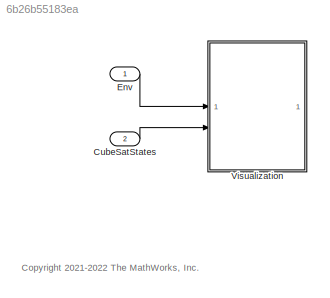
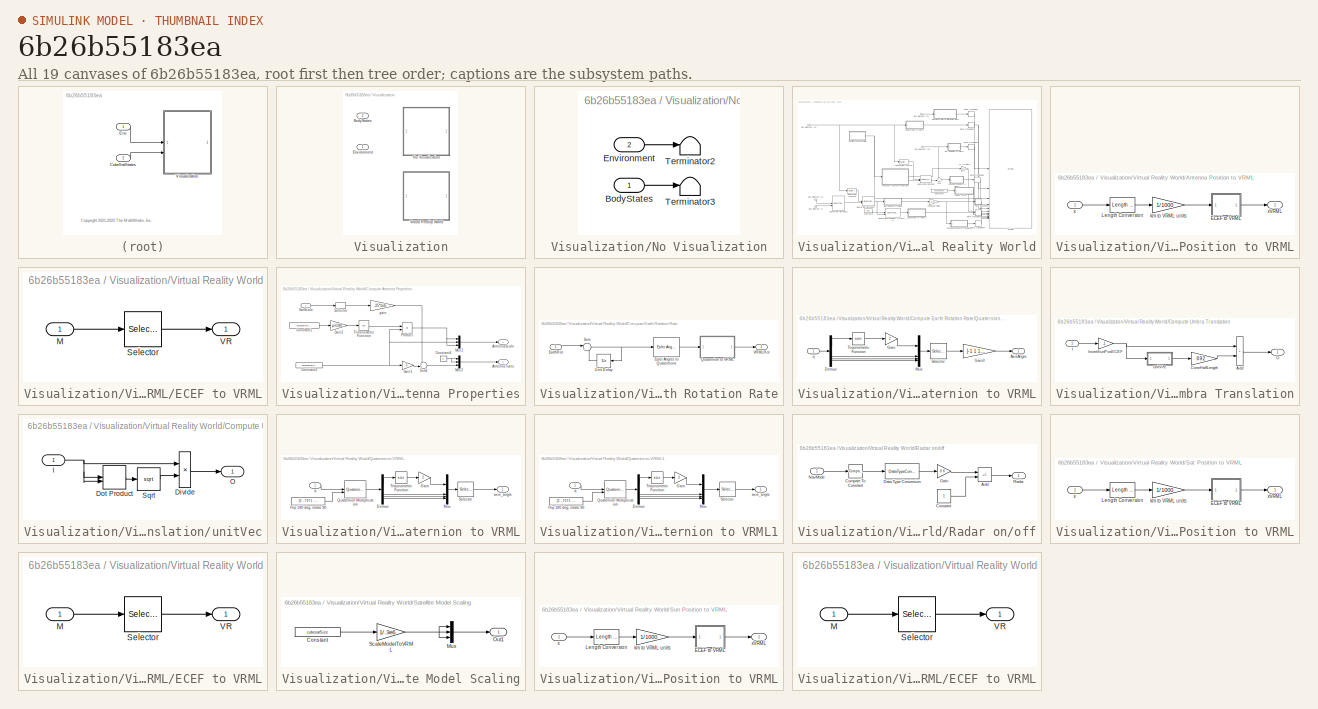
[diagram: thumbnail index - all 19 canvases of the model, root first then tree order]
MODEL slx_6b26b55183ea
KIND model
BLOCK [Inport] CubeSatStates
  OutDataTypeStr = Bus: StatesOutBus
  Port = 2
BLOCK [Inport] Env
  OutDataTypeStr = Bus: EnvBus
BLOCK [SubSystem] Visualization
  Variant = on
BLOCK [Inport] Visualization/BodyStates
  Port = 2
BLOCK [Inport] Visualization/Environment
BLOCK [SubSystem] Visualization/No Visualization
  VariantControl = visOff
BLOCK [Inport] Visualization/No Visualization/BodyStates
BLOCK [Inport] Visualization/No Visualization/Environment
  Port = 2
BLOCK [Terminator] Visualization/No Visualization/Terminator2
BLOCK [Terminator] Visualization/No Visualization/Terminator3
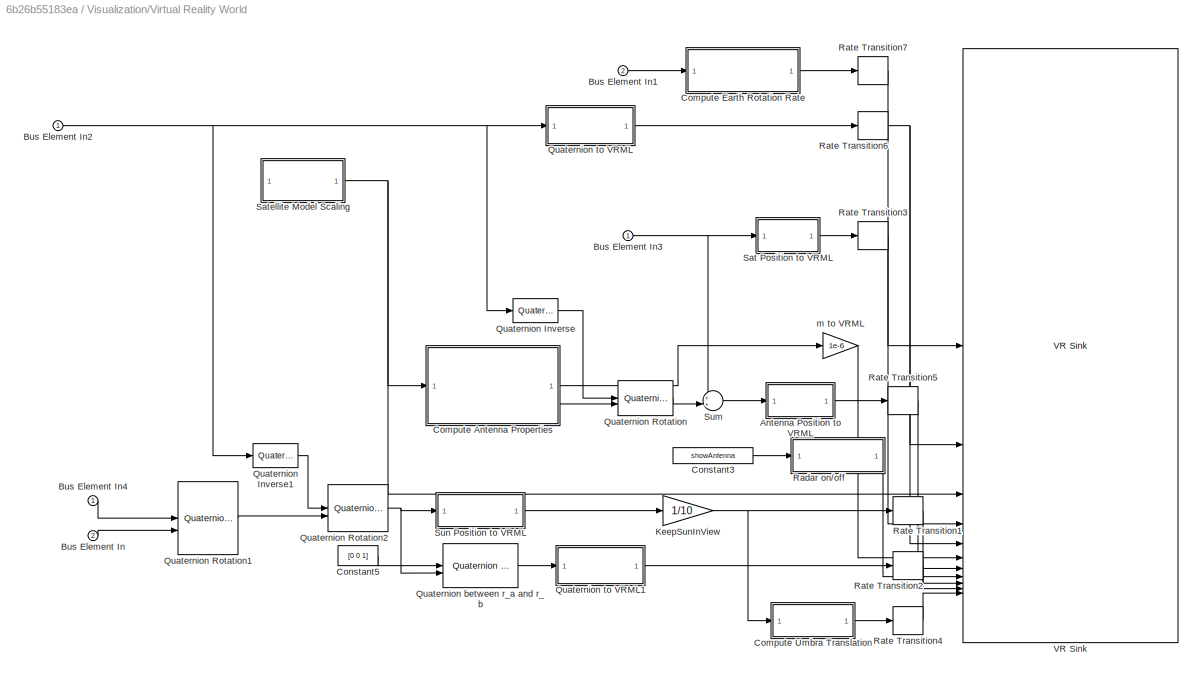
BLOCK [SubSystem] Visualization/Virtual Reality World
  VariantControl = visSL3D
BLOCK [SubSystem] Visualization/Virtual Reality World/Antenna Position to VRML
BLOCK [SubSystem] Visualization/Virtual Reality World/Antenna Position to VRML/ECEF to VRML
BLOCK [Inport] Visualization/Virtual Reality World/Antenna Position to VRML/ECEF to VRML/M
  PortDimensions = 3
BLOCK [Selector] Visualization/Virtual Reality World/Antenna Position to VRML/ECEF to VRML/Selector
  IndexOptions = Index vector (dialog)
  Indices = [2 3 1]
  InputPortWidth = 3
  OutputSizes = 1
BLOCK [Outport] Visualization/Virtual Reality World/Antenna Position to VRML/ECEF to VRML/VR
  PortDimensions = 3
  VectorParamsAs1DForOutWhenUnconnected = off
BLOCK [Reference] Visualization/Virtual Reality World/Antenna Position to VRML/Length Conversion  REF=aerolibconvert2/Length Conversion
  SourceBlock = aerolibconvert2/Length Conversion
  SourceType = Length Conversion
BLOCK [Gain] Visualization/Virtual Reality World/Antenna Position to VRML/km to VRML units
  Gain = 1/1000
BLOCK [Inport] Visualization/Virtual Reality World/Antenna Position to VRML/x
BLOCK [Outport] Visualization/Virtual Reality World/Antenna Position to VRML/xVRML
  VectorParamsAs1DForOutWhenUnconnected = off
BLOCK [Inport] Visualization/Virtual Reality World/Bus Element In
  Port = 2
BLOCK [Inport] Visualization/Virtual Reality World/Bus Element In1
  Port = 2
BLOCK [Inport] Visualization/Virtual Reality World/Bus Element In2
BLOCK [Inport] Visualization/Virtual Reality World/Bus Element In3
BLOCK [Inport] Visualization/Virtual Reality World/Bus Element In4
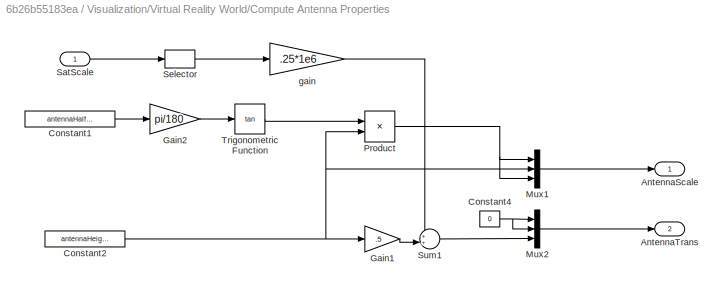
BLOCK [SubSystem] Visualization/Virtual Reality World/Compute Antenna Properties
BLOCK [Outport] Visualization/Virtual Reality World/Compute Antenna Properties/AntennaScale
  VectorParamsAs1DForOutWhenUnconnected = off
BLOCK [Outport] Visualization/Virtual Reality World/Compute Antenna Properties/AntennaTrans
  Port = 2
  VectorParamsAs1DForOutWhenUnconnected = off
BLOCK [Constant] Visualization/Virtual Reality World/Compute Antenna Properties/Constant1
  Value = antennaHalfAngle
BLOCK [Constant] Visualization/Virtual Reality World/Compute Antenna Properties/Constant2
  Value = antennaHeight
BLOCK [Constant] Visualization/Virtual Reality World/Compute Antenna Properties/Constant4
  Value = 0
BLOCK [Gain] Visualization/Virtual Reality World/Compute Antenna Properties/Gain1
  Gain = .5
BLOCK [Gain] Visualization/Virtual Reality World/Compute Antenna Properties/Gain2
  Gain = pi/180
BLOCK [Mux] Visualization/Virtual Reality World/Compute Antenna Properties/Mux1
  DisplayOption = bar
  Inputs = 3
BLOCK [Mux] Visualization/Virtual Reality World/Compute Antenna Properties/Mux2
  DisplayOption = bar
  Inputs = 3
BLOCK [Product] Visualization/Virtual Reality World/Compute Antenna Properties/Product
BLOCK [Inport] Visualization/Virtual Reality World/Compute Antenna Properties/SatScale
BLOCK [Selector] Visualization/Virtual Reality World/Compute Antenna Properties/Selector
  IndexOptions = Index vector (dialog)
  Indices = 1
  InputPortWidth = 3
  OutputSizes = 1
BLOCK [Sum] Visualization/Virtual Reality World/Compute Antenna Properties/Sum1
  Inputs = ++|
BLOCK [Trigonometry] Visualization/Virtual Reality World/Compute Antenna Properties/Trigonometric Function
  Operator = tan
BLOCK [Gain] Visualization/Virtual Reality World/Compute Antenna Properties/gain
  Gain = .25*1e6
BLOCK [SubSystem] Visualization/Virtual Reality World/Compute Earth Rotation Rate
BLOCK [Inport] Visualization/Virtual Reality World/Compute Earth Rotation Rate/EarthRot
BLOCK [Reference] Visualization/Virtual Reality World/Compute Earth Rotation Rate/Euler Angles to Quaternions  REF=aerolibobsolete/Euler Angles to Quaternions
  SourceBlock = aerolibobsolete/Euler Angles to Quaternions
  SourceType = Euler2Quaternion
BLOCK [SubSystem] Visualization/Virtual Reality World/Compute Earth Rotation Rate/Quaternion to VRML
BLOCK [Outport] Visualization/Virtual Reality World/Compute Earth Rotation Rate/Quaternion to VRML/AxisAngle
  VectorParamsAs1DForOutWhenUnconnected = off
BLOCK [Demux] Visualization/Virtual Reality World/Compute Earth Rotation Rate/Quaternion to VRML/Demux
BLOCK [Gain] Visualization/Virtual Reality World/Compute Earth Rotation Rate/Quaternion to VRML/Gain
  Gain = 2
BLOCK [Gain] Visualization/Virtual Reality World/Compute Earth Rotation Rate/Quaternion to VRML/Gain3
  Gain = [-1 1 1 1]
BLOCK [Mux] Visualization/Virtual Reality World/Compute Earth Rotation Rate/Quaternion to VRML/Mux
  DisplayOption = bar
BLOCK [Selector] Visualization/Virtual Reality World/Compute Earth Rotation Rate/Quaternion to VRML/Selector
  IndexOptions = Index vector (dialog)
  Indices = [2 4 3 1]
  InputPortWidth = 4
  OutputSizes = 1
BLOCK [Trigonometry] Visualization/Virtual Reality World/Compute Earth Rotation Rate/Quaternion to VRML/Trigonometric Function
  Operator = acos
BLOCK [Inport] Visualization/Virtual Reality World/Compute Earth Rotation Rate/Quaternion to VRML/q
BLOCK [Sum] Visualization/Virtual Reality World/Compute Earth Rotation Rate/Sum
  Inputs = |++
BLOCK [UnitDelay] Visualization/Virtual Reality World/Compute Earth Rotation Rate/Unit Delay
  HasFrameUpgradeWarning = on
  SampleTime = -1
BLOCK [Outport] Visualization/Virtual Reality World/Compute Earth Rotation Rate/VRMLRot
  VectorParamsAs1DForOutWhenUnconnected = off
BLOCK [SubSystem] Visualization/Virtual Reality World/Compute Umbra Translation
BLOCK [Sum] Visualization/Virtual Reality World/Compute Umbra Translation/Add
  IconShape = rectangular
BLOCK [Gain] Visualization/Virtual Reality World/Compute Umbra Translation/ConeHalfLength
  Gain = 692
BLOCK [Inport] Visualization/Virtual Reality World/Compute Umbra Translation/I
BLOCK [Gain] Visualization/Virtual Reality World/Compute Umbra Translation/InvertSunPosECEF
  Gain = -1
BLOCK [Outport] Visualization/Virtual Reality World/Compute Umbra Translation/O
  VectorParamsAs1DForOutWhenUnconnected = off
BLOCK [SubSystem] Visualization/Virtual Reality World/Compute Umbra Translation/unitVec
BLOCK [Product] Visualization/Virtual Reality World/Compute Umbra Translation/unitVec/Divide
  Inputs = */
BLOCK [DotProduct] Visualization/Virtual Reality World/Compute Umbra Translation/unitVec/Dot Product
  OutDataTypeStr = Inherit: Inherit via internal rule
BLOCK [Inport] Visualization/Virtual Reality World/Compute Umbra Translation/unitVec/I
BLOCK [Outport] Visualization/Virtual Reality World/Compute Umbra Translation/unitVec/O
  VectorParamsAs1DForOutWhenUnconnected = off
BLOCK [Sqrt] Visualization/Virtual Reality World/Compute Umbra Translation/unitVec/Sqrt
BLOCK [Constant] Visualization/Virtual Reality World/Constant3
  Value = showAntenna
BLOCK [Constant] Visualization/Virtual Reality World/Constant5
  Value = [0 0 1]
BLOCK [Gain] Visualization/Virtual Reality World/KeepSunInView
  Gain = 1/10
BLOCK [Reference] Visualization/Virtual Reality World/Quaternion Inverse  REF=aerolibutil/Quaternion
Inverse
  SourceBlock = aerolibutil/Quaternion\nInverse
  SourceType = Quaternion Inverse
BLOCK [Reference] Visualization/Virtual Reality World/Quaternion Inverse1  REF=aerolibutil/Quaternion
Inverse
  SourceBlock = aerolibutil/Quaternion\nInverse
  SourceType = Quaternion Inverse
BLOCK [Reference] Visualization/Virtual Reality World/Quaternion Rotation  REF=aerolibutil/Quaternion
Rotation
  SourceBlock = aerolibutil/Quaternion\nRotation
  SourceType = Quaternion Rotation
BLOCK [Reference] Visualization/Virtual Reality World/Quaternion Rotation1  REF=aerolibutil/Quaternion
Rotation
  SourceBlock = aerolibutil/Quaternion\nRotation
  SourceType = Quaternion Rotation
BLOCK [Reference] Visualization/Virtual Reality World/Quaternion Rotation2  REF=aerolibutil/Quaternion
Rotation
  SourceBlock = aerolibutil/Quaternion\nRotation
  SourceType = Quaternion Rotation
BLOCK [Reference] Visualization/Virtual Reality World/Quaternion between r_a and r_b  REF=aerolibattitudesys/Quaternion between
vectors
  SourceBlock = aerolibattitudesys/Quaternion between\nvectors
  SourceType = Calculate quaternion between vectors
BLOCK [SubSystem] Visualization/Virtual Reality World/Quaternion to VRML
BLOCK [Demux] Visualization/Virtual Reality World/Quaternion to VRML/Demux
BLOCK [Constant] Visualization/Virtual Reality World/Quaternion to VRML/Flip 180 deg, rotate 90
  Value = [0 -.7071 .7071 0]
BLOCK [Gain] Visualization/Virtual Reality World/Quaternion to VRML/Gain
  Gain = 2
BLOCK [Mux] Visualization/Virtual Reality World/Quaternion to VRML/Mux
  DisplayOption = bar
BLOCK [Reference] Visualization/Virtual Reality World/Quaternion to VRML/Quaternion Multiplication  REF=aerolibutil/Quaternion
Multiplication
  SourceBlock = aerolibutil/Quaternion\nMultiplication
  SourceType = Quaternion Multiplication
BLOCK [Selector] Visualization/Virtual Reality World/Quaternion to VRML/Selector
  IndexOptions = Index vector (dialog)
  Indices = [3 4 2 1]
  InputPortWidth = 4
  OutputSizes = 1
BLOCK [Trigonometry] Visualization/Virtual Reality World/Quaternion to VRML/Trigonometric Function
  Operator = acos
BLOCK [Outport] Visualization/Virtual Reality World/Quaternion to VRML/axis_angle
  VectorParamsAs1DForOutWhenUnconnected = off
BLOCK [Inport] Visualization/Virtual Reality World/Quaternion to VRML/q
BLOCK [SubSystem] Visualization/Virtual Reality World/Quaternion to VRML1
BLOCK [Demux] Visualization/Virtual Reality World/Quaternion to VRML1/Demux
BLOCK [Constant] Visualization/Virtual Reality World/Quaternion to VRML1/Flip 180 deg, rotate 90
  Value = [0 -.7071 .7071 0]
BLOCK [Gain] Visualization/Virtual Reality World/Quaternion to VRML1/Gain
  Gain = 2
BLOCK [Mux] Visualization/Virtual Reality World/Quaternion to VRML1/Mux
  DisplayOption = bar
BLOCK [Reference] Visualization/Virtual Reality World/Quaternion to VRML1/Quaternion Multiplication  REF=aerolibutil/Quaternion
Multiplication
  SourceBlock = aerolibutil/Quaternion\nMultiplication
  SourceType = Quaternion Multiplication
BLOCK [Selector] Visualization/Virtual Reality World/Quaternion to VRML1/Selector
  IndexOptions = Index vector (dialog)
  Indices = [3 4 2 1]
  InputPortWidth = 4
  OutputSizes = 1
BLOCK [Trigonometry] Visualization/Virtual Reality World/Quaternion to VRML1/Trigonometric Function
  Operator = acos
BLOCK [Outport] Visualization/Virtual Reality World/Quaternion to VRML1/axis_angle
  VectorParamsAs1DForOutWhenUnconnected = off
BLOCK [Inport] Visualization/Virtual Reality World/Quaternion to VRML1/q
BLOCK [SubSystem] Visualization/Virtual Reality World/Radar on//off
BLOCK [Sum] Visualization/Virtual Reality World/Radar on//off/Add
  IconShape = rectangular
  Inputs = -+
BLOCK [Reference] Visualization/Virtual Reality World/Radar on//off/Compare To Constant  REF=simulink/Logic and Bit
Operations/Compare
To Constant
  SourceBlock = simulink/Logic and Bit\nOperations/Compare\nTo Constant
  SourceType = Compare To Constant
BLOCK [Constant] Visualization/Virtual Reality World/Radar on//off/Constant
BLOCK [DataTypeConversion] Visualization/Virtual Reality World/Radar on//off/Data Type Conversion
  OutDataTypeStr = double
  RndMeth = Floor
  SaturateOnIntegerOverflow = off
BLOCK [Gain] Visualization/Virtual Reality World/Radar on//off/Gain
  Gain = 0.6
BLOCK [Inport] Visualization/Virtual Reality World/Radar on//off/NavMode
BLOCK [Outport] Visualization/Virtual Reality World/Radar on//off/Radar
  VectorParamsAs1DForOutWhenUnconnected = off
BLOCK [RateTransition] Visualization/Virtual Reality World/Rate Transition1
BLOCK [RateTransition] Visualization/Virtual Reality World/Rate Transition2
BLOCK [RateTransition] Visualization/Virtual Reality World/Rate Transition3
BLOCK [RateTransition] Visualization/Virtual Reality World/Rate Transition4
BLOCK [RateTransition] Visualization/Virtual Reality World/Rate Transition5
BLOCK [RateTransition] Visualization/Virtual Reality World/Rate Transition6
BLOCK [RateTransition] Visualization/Virtual Reality World/Rate Transition7
BLOCK [SubSystem] Visualization/Virtual Reality World/Sat Position to VRML
BLOCK [SubSystem] Visualization/Virtual Reality World/Sat Position to VRML/ECEF to VRML
BLOCK [Inport] Visualization/Virtual Reality World/Sat Position to VRML/ECEF to VRML/M
  PortDimensions = 3
BLOCK [Selector] Visualization/Virtual Reality World/Sat Position to VRML/ECEF to VRML/Selector
  IndexOptions = Index vector (dialog)
  Indices = [2 3 1]
  InputPortWidth = 3
  OutputSizes = 1
BLOCK [Outport] Visualization/Virtual Reality World/Sat Position to VRML/ECEF to VRML/VR
  PortDimensions = 3
  VectorParamsAs1DForOutWhenUnconnected = off
BLOCK [Reference] Visualization/Virtual Reality World/Sat Position to VRML/Length Conversion  REF=aerolibconvert2/Length Conversion
  SourceBlock = aerolibconvert2/Length Conversion
  SourceType = Length Conversion
BLOCK [Gain] Visualization/Virtual Reality World/Sat Position to VRML/km to VRML units
  Gain = 1/1000
BLOCK [Inport] Visualization/Virtual Reality World/Sat Position to VRML/x
BLOCK [Outport] Visualization/Virtual Reality World/Sat Position to VRML/xVRML
  VectorParamsAs1DForOutWhenUnconnected = off
BLOCK [SubSystem] Visualization/Virtual Reality World/Satellite Model Scaling
BLOCK [Constant] Visualization/Virtual Reality World/Satellite Model Scaling/Constant
  Value = cubesatSize
BLOCK [Mux] Visualization/Virtual Reality World/Satellite Model Scaling/Mux
  DisplayOption = bar
  Inputs = 3
BLOCK [Outport] Visualization/Virtual Reality World/Satellite Model Scaling/Out1
  VectorParamsAs1DForOutWhenUnconnected = off
BLOCK [Gain] Visualization/Virtual Reality World/Satellite Model Scaling/ScaleModelToVRML
  Gain = 1/.3e6
BLOCK [Sum] Visualization/Virtual Reality World/Sum
  Inputs = ++|
BLOCK [SubSystem] Visualization/Virtual Reality World/Sun Position to VRML
BLOCK [SubSystem] Visualization/Virtual Reality World/Sun Position to VRML/ECEF to VRML
BLOCK [Inport] Visualization/Virtual Reality World/Sun Position to VRML/ECEF to VRML/M
  PortDimensions = 3
BLOCK [Selector] Visualization/Virtual Reality World/Sun Position to VRML/ECEF to VRML/Selector
  IndexOptions = Index vector (dialog)
  Indices = [2 3 1]
  InputPortWidth = 3
  OutputSizes = 1
BLOCK [Outport] Visualization/Virtual Reality World/Sun Position to VRML/ECEF to VRML/VR
  PortDimensions = 3
  VectorParamsAs1DForOutWhenUnconnected = off
BLOCK [Reference] Visualization/Virtual Reality World/Sun Position to VRML/Length Conversion  REF=aerolibconvert2/Length Conversion
  SourceBlock = aerolibconvert2/Length Conversion
  SourceType = Length Conversion
BLOCK [Gain] Visualization/Virtual Reality World/Sun Position to VRML/km to VRML units
  Gain = 1/1000
BLOCK [Inport] Visualization/Virtual Reality World/Sun Position to VRML/x
BLOCK [Outport] Visualization/Virtual Reality World/Sun Position to VRML/xVRML
  VectorParamsAs1DForOutWhenUnconnected = off
BLOCK [Reference] Visualization/Virtual Reality World/VR Sink  REF=vrlib/VR Sink
  InstantiateOnLoad = on
  SourceBlock = vrlib/VR Sink
  SourceType = Virtual Reality Sink
BLOCK [Gain] Visualization/Virtual Reality World/m to VRML
  Gain = 1e-6
ANNOTATION (root): <copyright redacted>
LINE CubeSatStates:1 -> Visualization:2
LINE Env:1 -> Visualization:1
LINE Visualization/No Visualization/BodyStates:1 -> Visualization/No Visualization/Terminator3:1
LINE Visualization/No Visualization/Environment:1 -> Visualization/No Visualization/Terminator2:1
LINE Visualization/Virtual Reality World/Antenna Position to VRML/ECEF to VRML/M:1 -> Visualization/Virtual Reality World/Antenna Position to VRML/ECEF to VRML/Selector:1
LINE Visualization/Virtual Reality World/Antenna Position to VRML/ECEF to VRML/Selector:1 -> Visualization/Virtual Reality World/Antenna Position to VRML/ECEF to VRML/VR:1
LINE Visualization/Virtual Reality World/Antenna Position to VRML/ECEF to VRML:1 -> Visualization/Virtual Reality World/Antenna Position to VRML/xVRML:1
LINE Visualization/Virtual Reality World/Antenna Position to VRML/Length Conversion:1 -> Visualization/Virtual Reality World/Antenna Position to VRML/km to VRML units:1
LINE Visualization/Virtual Reality World/Antenna Position to VRML/km to VRML units:1 -> Visualization/Virtual Reality World/Antenna Position to VRML/ECEF to VRML:1
LINE Visualization/Virtual Reality World/Antenna Position to VRML/x:1 -> Visualization/Virtual Reality World/Antenna Position to VRML/Length Conversion:1
LINE Visualization/Virtual Reality World/Antenna Position to VRML:1 -> Visualization/Virtual Reality World/Rate Transition5:1
LINE Visualization/Virtual Reality World/Bus Element In1:1 -> Visualization/Virtual Reality World/Compute Earth Rotation Rate:1
NET Visualization/Virtual Reality World/Bus Element In2:1 -> Visualization/Virtual Reality World/Quaternion Inverse1:1, Visualization/Virtual Reality World/Quaternion Inverse:1, Visualization/Virtual Reality World/Quaternion to VRML:1
NET Visualization/Virtual Reality World/Bus Element In3:1 -> Visualization/Virtual Reality World/Sat Position to VRML:1, Visualization/Virtual Reality World/Sum:1
LINE Visualization/Virtual Reality World/Bus Element In4:1 -> Visualization/Virtual Reality World/Quaternion Rotation1:1
LINE Visualization/Virtual Reality World/Bus Element In:1 -> Visualization/Virtual Reality World/Quaternion Rotation1:2
LINE Visualization/Virtual Reality World/Compute Antenna Properties/Constant1:1 -> Visualization/Virtual Reality World/Compute Antenna Properties/Gain2:1
NET Visualization/Virtual Reality World/Compute Antenna Properties/Constant2:1 -> Visualization/Virtual Reality World/Compute Antenna Properties/Gain1:1, Visualization/Virtual Reality World/Compute Antenna Properties/Mux1:2, Visualization/Virtual Reality World/Compute Antenna Properties/Product:2
NET Visualization/Virtual Reality World/Compute Antenna Properties/Constant4:1 -> Visualization/Virtual Reality World/Compute Antenna Properties/Mux2:1, Visualization/Virtual Reality World/Compute Antenna Properties/Mux2:2
LINE Visualization/Virtual Reality World/Compute Antenna Properties/Gain1:1 -> Visualization/Virtual Reality World/Compute Antenna Properties/Sum1:2
LINE Visualization/Virtual Reality World/Compute Antenna Properties/Gain2:1 -> Visualization/Virtual Reality World/Compute Antenna Properties/Trigonometric Function:1
LINE Visualization/Virtual Reality World/Compute Antenna Properties/Mux1:1 -> Visualization/Virtual Reality World/Compute Antenna Properties/AntennaScale:1
LINE Visualization/Virtual Reality World/Compute Antenna Properties/Mux2:1 -> Visualization/Virtual Reality World/Compute Antenna Properties/AntennaTrans:1
NET Visualization/Virtual Reality World/Compute Antenna Properties/Product:1 -> Visualization/Virtual Reality World/Compute Antenna Properties/Mux1:1, Visualization/Virtual Reality World/Compute Antenna Properties/Mux1:3
LINE Visualization/Virtual Reality World/Compute Antenna Properties/SatScale:1 -> Visualization/Virtual Reality World/Compute Antenna Properties/Selector:1
LINE Visualization/Virtual Reality World/Compute Antenna Properties/Selector:1 -> Visualization/Virtual Reality World/Compute Antenna Properties/gain:1
LINE Visualization/Virtual Reality World/Compute Antenna Properties/Sum1:1 -> Visualization/Virtual Reality World/Compute Antenna Properties/Mux2:3
LINE Visualization/Virtual Reality World/Compute Antenna Properties/Trigonometric Function:1 -> Visualization/Virtual Reality World/Compute Antenna Properties/Product:1
LINE Visualization/Virtual Reality World/Compute Antenna Properties/gain:1 -> Visualization/Virtual Reality World/Compute Antenna Properties/Sum1:1
LINE Visualization/Virtual Reality World/Compute Antenna Properties:1 -> Visualization/Virtual Reality World/m to VRML:1
LINE Visualization/Virtual Reality World/Compute Antenna Properties:2 -> Visualization/Virtual Reality World/Quaternion Rotation:2
LINE Visualization/Virtual Reality World/Compute Earth Rotation Rate/EarthRot:1 -> Visualization/Virtual Reality World/Compute Earth Rotation Rate/Sum:1
LINE Visualization/Virtual Reality World/Compute Earth Rotation Rate/Euler Angles to Quaternions:1 -> Visualization/Virtual Reality World/Compute Earth Rotation Rate/Quaternion to VRML:1
LINE Visualization/Virtual Reality World/Compute Earth Rotation Rate/Quaternion to VRML/Demux:1 -> Visualization/Virtual Reality World/Compute Earth Rotation Rate/Quaternion to VRML/Trigonometric Function:1
LINE Visualization/Virtual Reality World/Compute Earth Rotation Rate/Quaternion to VRML/Demux:2 -> Visualization/Virtual Reality World/Compute Earth Rotation Rate/Quaternion to VRML/Mux:2
LINE Visualization/Virtual Reality World/Compute Earth Rotation Rate/Quaternion to VRML/Demux:3 -> Visualization/Virtual Reality World/Compute Earth Rotation Rate/Quaternion to VRML/Mux:3
LINE Visualization/Virtual Reality World/Compute Earth Rotation Rate/Quaternion to VRML/Demux:4 -> Visualization/Virtual Reality World/Compute Earth Rotation Rate/Quaternion to VRML/Mux:4
LINE Visualization/Virtual Reality World/Compute Earth Rotation Rate/Quaternion to VRML/Gain3:1 -> Visualization/Virtual Reality World/Compute Earth Rotation Rate/Quaternion to VRML/AxisAngle:1
LINE Visualization/Virtual Reality World/Compute Earth Rotation Rate/Quaternion to VRML/Gain:1 -> Visualization/Virtual Reality World/Compute Earth Rotation Rate/Quaternion to VRML/Mux:1
LINE Visualization/Virtual Reality World/Compute Earth Rotation Rate/Quaternion to VRML/Mux:1 -> Visualization/Virtual Reality World/Compute Earth Rotation Rate/Quaternion to VRML/Selector:1
LINE Visualization/Virtual Reality World/Compute Earth Rotation Rate/Quaternion to VRML/Selector:1 -> Visualization/Virtual Reality World/Compute Earth Rotation Rate/Quaternion to VRML/Gain3:1
LINE Visualization/Virtual Reality World/Compute Earth Rotation Rate/Quaternion to VRML/Trigonometric Function:1 -> Visualization/Virtual Reality World/Compute Earth Rotation Rate/Quaternion to VRML/Gain:1
LINE Visualization/Virtual Reality World/Compute Earth Rotation Rate/Quaternion to VRML/q:1 -> Visualization/Virtual Reality World/Compute Earth Rotation Rate/Quaternion to VRML/Demux:1
LINE Visualization/Virtual Reality World/Compute Earth Rotation Rate/Quaternion to VRML:1 -> Visualization/Virtual Reality World/Compute Earth Rotation Rate/VRMLRot:1
NET Visualization/Virtual Reality World/Compute Earth Rotation Rate/Sum:1 -> Visualization/Virtual Reality World/Compute Earth Rotation Rate/Euler Angles to Quaternions:1, Visualization/Virtual Reality World/Compute Earth Rotation Rate/Unit Delay:1
LINE Visualization/Virtual Reality World/Compute Earth Rotation Rate/Unit Delay:1 -> Visualization/Virtual Reality World/Compute Earth Rotation Rate/Sum:2
LINE Visualization/Virtual Reality World/Compute Earth Rotation Rate:1 -> Visualization/Virtual Reality World/Rate Transition7:1
LINE Visualization/Virtual Reality World/Compute Umbra Translation/Add:1 -> Visualization/Virtual Reality World/Compute Umbra Translation/O:1
LINE Visualization/Virtual Reality World/Compute Umbra Translation/ConeHalfLength:1 -> Visualization/Virtual Reality World/Compute Umbra Translation/Add:2
LINE Visualization/Virtual Reality World/Compute Umbra Translation/I:1 -> Visualization/Virtual Reality World/Compute Umbra Translation/InvertSunPosECEF:1
NET Visualization/Virtual Reality World/Compute Umbra Translation/InvertSunPosECEF:1 -> Visualization/Virtual Reality World/Compute Umbra Translation/Add:1, Visualization/Virtual Reality World/Compute Umbra Translation/unitVec:1
LINE Visualization/Virtual Reality World/Compute Umbra Translation/unitVec/Divide:1 -> Visualization/Virtual Reality World/Compute Umbra Translation/unitVec/O:1
LINE Visualization/Virtual Reality World/Compute Umbra Translation/unitVec/Dot Product:1 -> Visualization/Virtual Reality World/Compute Umbra Translation/unitVec/Sqrt:1
NET Visualization/Virtual Reality World/Compute Umbra Translation/unitVec/I:1 -> Visualization/Virtual Reality World/Compute Umbra Translation/unitVec/Divide:1, Visualization/Virtual Reality World/Compute Umbra Translation/unitVec/Dot Product:1, Visualization/Virtual Reality World/Compute Umbra Translation/unitVec/Dot Product:2
LINE Visualization/Virtual Reality World/Compute Umbra Translation/unitVec/Sqrt:1 -> Visualization/Virtual Reality World/Compute Umbra Translation/unitVec/Divide:2
LINE Visualization/Virtual Reality World/Compute Umbra Translation/unitVec:1 -> Visualization/Virtual Reality World/Compute Umbra Translation/ConeHalfLength:1
LINE Visualization/Virtual Reality World/Compute Umbra Translation:1 -> Visualization/Virtual Reality World/Rate Transition4:1
LINE Visualization/Virtual Reality World/Constant3:1 -> Visualization/Virtual Reality World/Radar on//off:1
LINE Visualization/Virtual Reality World/Constant5:1 -> Visualization/Virtual Reality World/Quaternion between r_a and r_b:1
NET Visualization/Virtual Reality World/KeepSunInView:1 -> Visualization/Virtual Reality World/Compute Umbra Translation:1, Visualization/Virtual Reality World/Rate Transition1:1
LINE Visualization/Virtual Reality World/Quaternion Inverse1:1 -> Visualization/Virtual Reality World/Quaternion Rotation2:1
LINE Visualization/Virtual Reality World/Quaternion Inverse:1 -> Visualization/Virtual Reality World/Quaternion Rotation:1
LINE Visualization/Virtual Reality World/Quaternion Rotation1:1 -> Visualization/Virtual Reality World/Quaternion Rotation2:2
NET Visualization/Virtual Reality World/Quaternion Rotation2:1 -> Visualization/Virtual Reality World/Quaternion between r_a and r_b:2, Visualization/Virtual Reality World/Sun Position to VRML:1
LINE Visualization/Virtual Reality World/Quaternion Rotation:1 -> Visualization/Virtual Reality World/Sum:2
LINE Visualization/Virtual Reality World/Quaternion between r_a and r_b:1 -> Visualization/Virtual Reality World/Quaternion to VRML1:1
LINE Visualization/Virtual Reality World/Quaternion to VRML/Demux:1 -> Visualization/Virtual Reality World/Quaternion to VRML/Trigonometric Function:1
LINE Visualization/Virtual Reality World/Quaternion to VRML/Demux:2 -> Visualization/Virtual Reality World/Quaternion to VRML/Mux:2
LINE Visualization/Virtual Reality World/Quaternion to VRML/Demux:3 -> Visualization/Virtual Reality World/Quaternion to VRML/Mux:3
LINE Visualization/Virtual Reality World/Quaternion to VRML/Demux:4 -> Visualization/Virtual Reality World/Quaternion to VRML/Mux:4
LINE Visualization/Virtual Reality World/Quaternion to VRML/Flip 180 deg, rotate 90:1 -> Visualization/Virtual Reality World/Quaternion to VRML/Quaternion Multiplication:2
LINE Visualization/Virtual Reality World/Quaternion to VRML/Gain:1 -> Visualization/Virtual Reality World/Quaternion to VRML/Mux:1
LINE Visualization/Virtual Reality World/Quaternion to VRML/Mux:1 -> Visualization/Virtual Reality World/Quaternion to VRML/Selector:1
LINE Visualization/Virtual Reality World/Quaternion to VRML/Quaternion Multiplication:1 -> Visualization/Virtual Reality World/Quaternion to VRML/Demux:1
LINE Visualization/Virtual Reality World/Quaternion to VRML/Selector:1 -> Visualization/Virtual Reality World/Quaternion to VRML/axis_angle:1
LINE Visualization/Virtual Reality World/Quaternion to VRML/Trigonometric Function:1 -> Visualization/Virtual Reality World/Quaternion to VRML/Gain:1
LINE Visualization/Virtual Reality World/Quaternion to VRML/q:1 -> Visualization/Virtual Reality World/Quaternion to VRML/Quaternion Multiplication:1
LINE Visualization/Virtual Reality World/Quaternion to VRML1/Demux:1 -> Visualization/Virtual Reality World/Quaternion to VRML1/Trigonometric Function:1
LINE Visualization/Virtual Reality World/Quaternion to VRML1/Demux:2 -> Visualization/Virtual Reality World/Quaternion to VRML1/Mux:2
LINE Visualization/Virtual Reality World/Quaternion to VRML1/Demux:3 -> Visualization/Virtual Reality World/Quaternion to VRML1/Mux:3
LINE Visualization/Virtual Reality World/Quaternion to VRML1/Demux:4 -> Visualization/Virtual Reality World/Quaternion to VRML1/Mux:4
LINE Visualization/Virtual Reality World/Quaternion to VRML1/Flip 180 deg, rotate 90:1 -> Visualization/Virtual Reality World/Quaternion to VRML1/Quaternion Multiplication:2
LINE Visualization/Virtual Reality World/Quaternion to VRML1/Gain:1 -> Visualization/Virtual Reality World/Quaternion to VRML1/Mux:1
LINE Visualization/Virtual Reality World/Quaternion to VRML1/Mux:1 -> Visualization/Virtual Reality World/Quaternion to VRML1/Selector:1
LINE Visualization/Virtual Reality World/Quaternion to VRML1/Quaternion Multiplication:1 -> Visualization/Virtual Reality World/Quaternion to VRML1/Demux:1
LINE Visualization/Virtual Reality World/Quaternion to VRML1/Selector:1 -> Visualization/Virtual Reality World/Quaternion to VRML1/axis_angle:1
LINE Visualization/Virtual Reality World/Quaternion to VRML1/Trigonometric Function:1 -> Visualization/Virtual Reality World/Quaternion to VRML1/Gain:1
LINE Visualization/Virtual Reality World/Quaternion to VRML1/q:1 -> Visualization/Virtual Reality World/Quaternion to VRML1/Quaternion Multiplication:1
LINE Visualization/Virtual Reality World/Quaternion to VRML1:1 -> Visualization/Virtual Reality World/Rate Transition2:1
LINE Visualization/Virtual Reality World/Quaternion to VRML:1 -> Visualization/Virtual Reality World/Rate Transition6:1
LINE Visualization/Virtual Reality World/Radar on//off/Add:1 -> Visualization/Virtual Reality World/Radar on//off/Radar:1
LINE Visualization/Virtual Reality World/Radar on//off/Compare To Constant:1 -> Visualization/Virtual Reality World/Radar on//off/Data Type Conversion:1
LINE Visualization/Virtual Reality World/Radar on//off/Constant:1 -> Visualization/Virtual Reality World/Radar on//off/Add:2
LINE Visualization/Virtual Reality World/Radar on//off/Data Type Conversion:1 -> Visualization/Virtual Reality World/Radar on//off/Gain:1
LINE Visualization/Virtual Reality World/Radar on//off/Gain:1 -> Visualization/Virtual Reality World/Radar on//off/Add:1
LINE Visualization/Virtual Reality World/Radar on//off/NavMode:1 -> Visualization/Virtual Reality World/Radar on//off/Compare To Constant:1
LINE Visualization/Virtual Reality World/Radar on//off:1 -> Visualization/Virtual Reality World/VR Sink:8
LINE Visualization/Virtual Reality World/Rate Transition1:1 -> Visualization/Virtual Reality World/VR Sink:9
LINE Visualization/Virtual Reality World/Rate Transition2:1 -> Visualization/Virtual Reality World/VR Sink:10
LINE Visualization/Virtual Reality World/Rate Transition3:1 -> Visualization/Virtual Reality World/VR Sink:4
LINE Visualization/Virtual Reality World/Rate Transition4:1 -> Visualization/Virtual Reality World/VR Sink:11
LINE Visualization/Virtual Reality World/Rate Transition5:1 -> Visualization/Virtual Reality World/VR Sink:7
NET Visualization/Virtual Reality World/Rate Transition6:1 -> Visualization/Virtual Reality World/VR Sink:2, Visualization/Virtual Reality World/VR Sink:5
LINE Visualization/Virtual Reality World/Rate Transition7:1 -> Visualization/Virtual Reality World/VR Sink:1
LINE Visualization/Virtual Reality World/Sat Position to VRML/ECEF to VRML/M:1 -> Visualization/Virtual Reality World/Sat Position to VRML/ECEF to VRML/Selector:1
LINE Visualization/Virtual Reality World/Sat Position to VRML/ECEF to VRML/Selector:1 -> Visualization/Virtual Reality World/Sat Position to VRML/ECEF to VRML/VR:1
LINE Visualization/Virtual Reality World/Sat Position to VRML/ECEF to VRML:1 -> Visualization/Virtual Reality World/Sat Position to VRML/xVRML:1
LINE Visualization/Virtual Reality World/Sat Position to VRML/Length Conversion:1 -> Visualization/Virtual Reality World/Sat Position to VRML/km to VRML units:1
LINE Visualization/Virtual Reality World/Sat Position to VRML/km to VRML units:1 -> Visualization/Virtual Reality World/Sat Position to VRML/ECEF to VRML:1
LINE Visualization/Virtual Reality World/Sat Position to VRML/x:1 -> Visualization/Virtual Reality World/Sat Position to VRML/Length Conversion:1
LINE Visualization/Virtual Reality World/Sat Position to VRML:1 -> Visualization/Virtual Reality World/Rate Transition3:1
LINE Visualization/Virtual Reality World/Satellite Model Scaling/Constant:1 -> Visualization/Virtual Reality World/Satellite Model Scaling/ScaleModelToVRML:1
LINE Visualization/Virtual Reality World/Satellite Model Scaling/Mux:1 -> Visualization/Virtual Reality World/Satellite Model Scaling/Out1:1
NET Visualization/Virtual Reality World/Satellite Model Scaling/ScaleModelToVRML:1 -> Visualization/Virtual Reality World/Satellite Model Scaling/Mux:1, Visualization/Virtual Reality World/Satellite Model Scaling/Mux:2, Visualization/Virtual Reality World/Satellite Model Scaling/Mux:3
NET Visualization/Virtual Reality World/Satellite Model Scaling:1 -> Visualization/Virtual Reality World/Compute Antenna Properties:1, Visualization/Virtual Reality World/VR Sink:3
LINE Visualization/Virtual Reality World/Sum:1 -> Visualization/Virtual Reality World/Antenna Position to VRML:1
LINE Visualization/Virtual Reality World/Sun Position to VRML/ECEF to VRML/M:1 -> Visualization/Virtual Reality World/Sun Position to VRML/ECEF to VRML/Selector:1
LINE Visualization/Virtual Reality World/Sun Position to VRML/ECEF to VRML/Selector:1 -> Visualization/Virtual Reality World/Sun Position to VRML/ECEF to VRML/VR:1
LINE Visualization/Virtual Reality World/Sun Position to VRML/ECEF to VRML:1 -> Visualization/Virtual Reality World/Sun Position to VRML/xVRML:1
LINE Visualization/Virtual Reality World/Sun Position to VRML/Length Conversion:1 -> Visualization/Virtual Reality World/Sun Position to VRML/km to VRML units:1
LINE Visualization/Virtual Reality World/Sun Position to VRML/km to VRML units:1 -> Visualization/Virtual Reality World/Sun Position to VRML/ECEF to VRML:1
LINE Visualization/Virtual Reality World/Sun Position to VRML/x:1 -> Visualization/Virtual Reality World/Sun Position to VRML/Length Conversion:1
LINE Visualization/Virtual Reality World/Sun Position to VRML:1 -> Visualization/Virtual Reality World/KeepSunInView:1
LINE Visualization/Virtual Reality World/m to VRML:1 -> Visualization/Virtual Reality World/VR Sink:6
note: NET lines group one-source signal fan-out (src -> all destinations, sorted); 1:1 wires keep LINE
